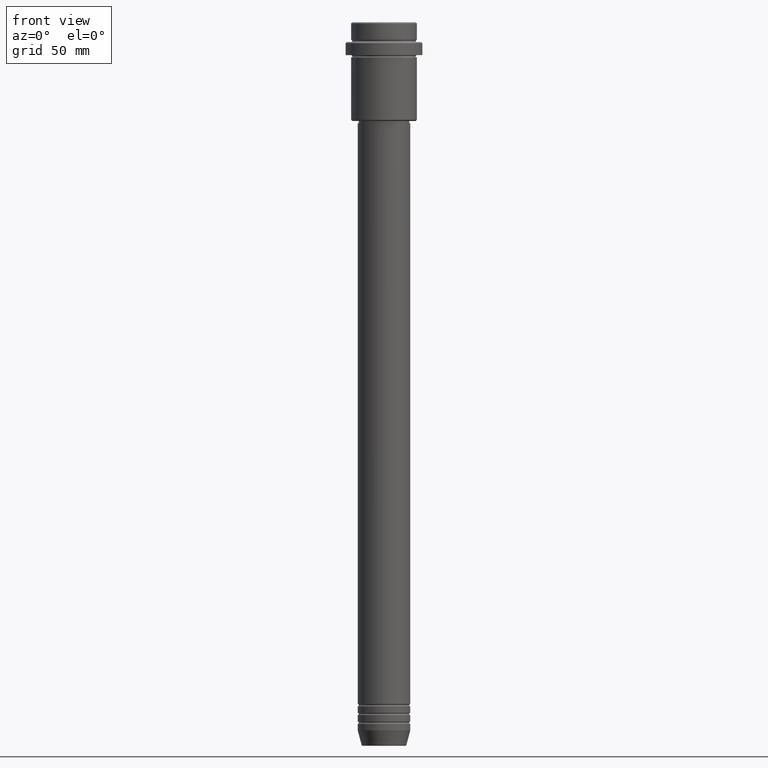
[diagram: clean part render]
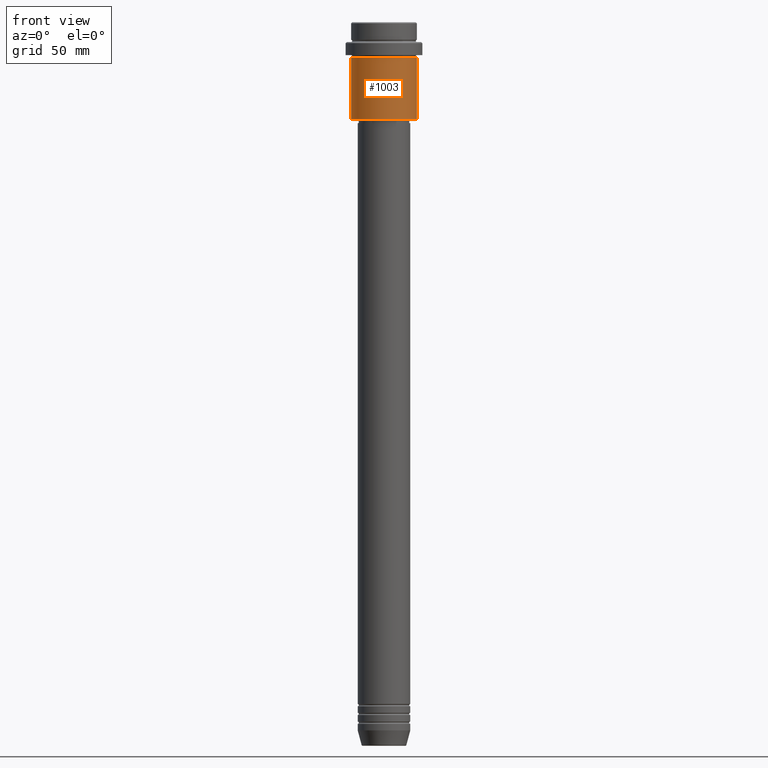
[diagram: same view with one face highlighted and labeled with its STEP entity id]
A machine part, front view. The second image highlights one B-rep face of the part: STEP entity #1003.
In plain terms, the highlighted cylindrical surface (edge-blend (fillet) strip) has radius 15 mm, axis along (-0, -0, 1).
Its self-contained STEP definition (entity closure, byte-faithful):
#3 = AXIS2_PLACEMENT_3D ( 'NONE', #1324, #1220, #943 ) ;
#17 = CARTESIAN_POINT ( 'NONE',  ( -15.00000000000000000, 1.836970198721029589E-15, -44.49999999999994316 ) ) ;
#36 = ORIENTED_EDGE ( 'NONE', *, *, #1029, .F. ) ;
#38 = DIRECTION ( 'NONE',  ( -0.000000000000000000, -0.000000000000000000, 1.000000000000000000 ) ) ;
#58 = CYLINDRICAL_SURFACE ( 'NONE', #1306, 15.00000000000000000 ) ;
#106 = VECTOR ( 'NONE', #1147, 1000.000000000000000 ) ;
#155 = DIRECTION ( 'NONE',  ( 1.000000000000000000, 0.000000000000000000, 0.000000000000000000 ) ) ;
#178 = AXIS2_PLACEMENT_3D ( 'NONE', #366, #260, #398 ) ;
#200 = CARTESIAN_POINT ( 'NONE',  ( -15.00000000000000355, 1.836970198721029983E-15, -16.00000000000000000 ) ) ;
#202 = VERTEX_POINT ( 'NONE', #200 ) ;
#260 = DIRECTION ( 'NONE',  ( -0.000000000000000000, -0.000000000000000000, 1.000000000000000000 ) ) ;
#323 = CARTESIAN_POINT ( 'NONE',  ( 15.00000000000000178, 0.000000000000000000, -16.00000000000000000 ) ) ;
#366 = CARTESIAN_POINT ( 'NONE',  ( 0.000000000000000000, 0.000000000000000000, -44.49999999999994316 ) ) ;
#384 = DIRECTION ( 'NONE',  ( -0.000000000000000000, -0.000000000000000000, 1.000000000000000000 ) ) ;
#398 = DIRECTION ( 'NONE',  ( -1.000000000000000000, 0.000000000000000000, 0.000000000000000000 ) ) ;
#404 = VECTOR ( 'NONE', #384, 1000.000000000000000 ) ;
#472 = CARTESIAN_POINT ( 'NONE',  ( 0.000000000000000000, 0.000000000000000000, 0.000000000000000000 ) ) ;
#486 = EDGE_LOOP ( 'NONE', ( #36, #1011, #1241, #912 ) ) ;
#506 = VERTEX_POINT ( 'NONE', #888 ) ;
#588 = CARTESIAN_POINT ( 'NONE',  ( -15.00000000000000000, 1.836970198721029589E-15, 0.000000000000000000 ) ) ;
#666 = VERTEX_POINT ( 'NONE', #323 ) ;
#698 = LINE ( 'NONE', #913, #106 ) ;
#888 = CARTESIAN_POINT ( 'NONE',  ( 15.00000000000000000, 0.000000000000000000, -44.49999999999994316 ) ) ;
#912 = ORIENTED_EDGE ( 'NONE', *, *, #1257, .F. ) ;
#913 = CARTESIAN_POINT ( 'NONE',  ( 15.00000000000000000, 0.000000000000000000, 0.000000000000000000 ) ) ;
#919 = VERTEX_POINT ( 'NONE', #17 ) ;
#933 = CIRCLE ( 'NONE', #3, 15.00000000000000178 ) ;
#943 = DIRECTION ( 'NONE',  ( 1.000000000000000000, 0.000000000000000000, 0.000000000000000000 ) ) ;
#950 = EDGE_CURVE ( 'NONE', #919, #506, #1217, .T. ) ;
#1003 = ADVANCED_FACE ( 'NONE', ( #1379 ), #58, .T. ) ;
#1007 = EDGE_CURVE ( 'NONE', #506, #666, #698, .T. ) ;
#1011 = ORIENTED_EDGE ( 'NONE', *, *, #950, .T. ) ;
#1029 = EDGE_CURVE ( 'NONE', #919, #202, #1276, .T. ) ;
#1147 = DIRECTION ( 'NONE',  ( -0.000000000000000000, -0.000000000000000000, 1.000000000000000000 ) ) ;
#1217 = CIRCLE ( 'NONE', #178, 15.00000000000000000 ) ;
#1220 = DIRECTION ( 'NONE',  ( -0.000000000000000000, -0.000000000000000000, 1.000000000000000000 ) ) ;
#1241 = ORIENTED_EDGE ( 'NONE', *, *, #1007, .T. ) ;
#1257 = EDGE_CURVE ( 'NONE', #202, #666, #933, .T. ) ;
#1276 = LINE ( 'NONE', #588, #404 ) ;
#1306 = AXIS2_PLACEMENT_3D ( 'NONE', #472, #38, #155 ) ;
#1324 = CARTESIAN_POINT ( 'NONE',  ( 0.000000000000000000, 0.000000000000000000, -16.00000000000000000 ) ) ;
#1379 = FACE_OUTER_BOUND ( 'NONE', #486, .T. ) ;